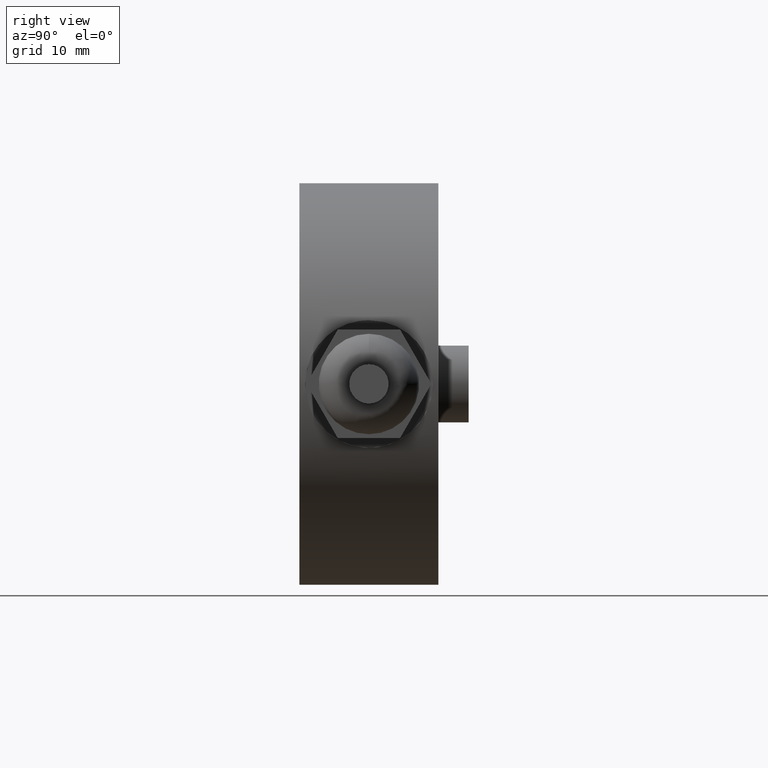
[diagram: clean part render]
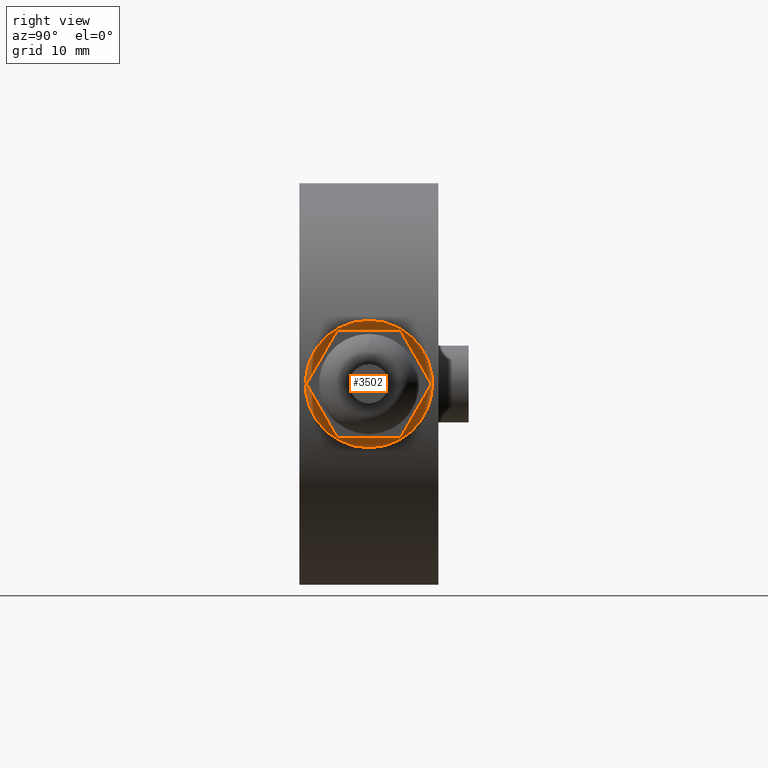
[diagram: same view with one face highlighted and labeled with its STEP entity id]
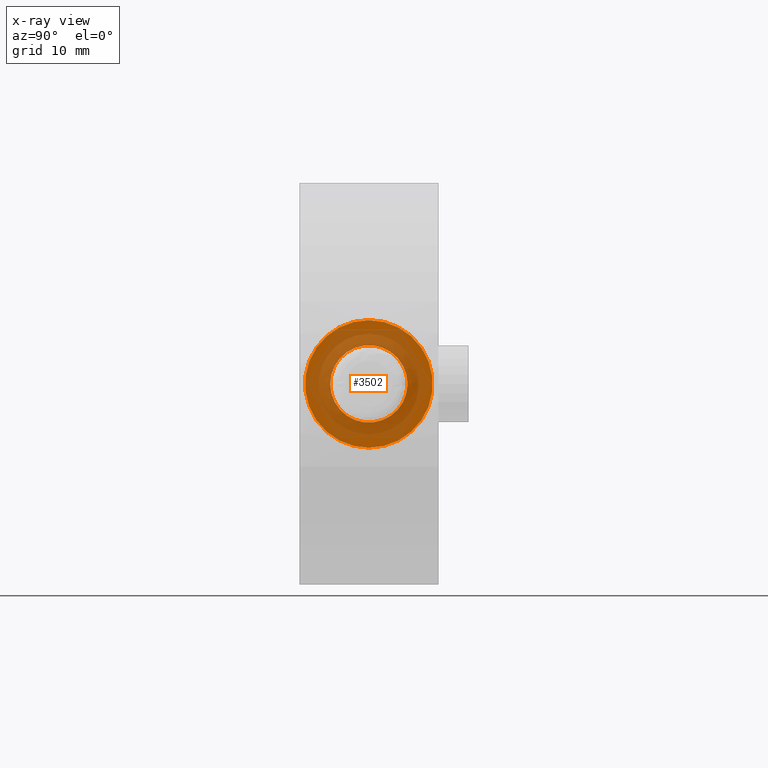
[diagram: x-ray of the same camera — body ghosted, the highlighted face saturated]
A machine part, right view. The second image highlights one B-rep face of the part: STEP entity #3502.
The next image is the same camera in x-ray: the body ghosted, the highlighted face saturated — about 69% of this face is hidden behind the body in this view.
In plain terms, the highlighted planar face has unit normal (1, 0, 0).
Its self-contained STEP definition (entity closure, byte-faithful):
#317=FACE_BOUND('',#753,.T.);
#344=PLANE('',#3761);
#534=FACE_OUTER_BOUND('',#752,.T.);
#752=EDGE_LOOP('',(#2769));
#753=EDGE_LOOP('',(#2770,#2771));
#1227=CIRCLE('',#3757,5.);
#1228=CIRCLE('',#3758,5.);
#1229=CIRCLE('',#3760,8.25);
#1552=VERTEX_POINT('',#9110);
#1553=VERTEX_POINT('',#9111);
#1557=VERTEX_POINT('',#9147);
#2041=EDGE_CURVE('',#1552,#1553,#1227,.T.);
#2042=EDGE_CURVE('',#1553,#1552,#1228,.T.);
#2047=EDGE_CURVE('',#1557,#1557,#1229,.T.);
#2769=ORIENTED_EDGE('',*,*,#2047,.F.);
#2770=ORIENTED_EDGE('',*,*,#2041,.T.);
#2771=ORIENTED_EDGE('',*,*,#2042,.T.);
#3502=ADVANCED_FACE('',(#534,#317),#344,.T.);
#3757=AXIS2_PLACEMENT_3D('',#9112,#4417,#4418);
#3758=AXIS2_PLACEMENT_3D('',#9113,#4419,#4420);
#3760=AXIS2_PLACEMENT_3D('',#9149,#4425,#4426);
#3761=AXIS2_PLACEMENT_3D('',#9160,#4427,#4428);
#4417=DIRECTION('center_axis',(-1.,0.,0.));
#4418=DIRECTION('ref_axis',(0.,1.,0.));
#4419=DIRECTION('center_axis',(-1.,0.,0.));
#4420=DIRECTION('ref_axis',(0.,1.,0.));
#4425=DIRECTION('center_axis',(-1.,0.,0.));
#4426=DIRECTION('ref_axis',(0.,0.,-1.));
#4427=DIRECTION('center_axis',(1.,0.,0.));
#4428=DIRECTION('ref_axis',(0.,0.,-1.));
#9110=CARTESIAN_POINT('',(24.,14.,-3.36720022920939E-16));
#9111=CARTESIAN_POINT('',(24.,4.,2.75603376652738E-16));
#9112=CARTESIAN_POINT('Origin',(24.,9.,-3.36720022920939E-16));
#9113=CARTESIAN_POINT('Origin',(24.,9.,-3.36720022920939E-16));
#9147=CARTESIAN_POINT('',(24.,9.,8.25));
#9149=CARTESIAN_POINT('Origin',(24.,9.,-3.06161699786838E-16));
#9160=CARTESIAN_POINT('Origin',(24.,9.,-3.06161699786838E-16));